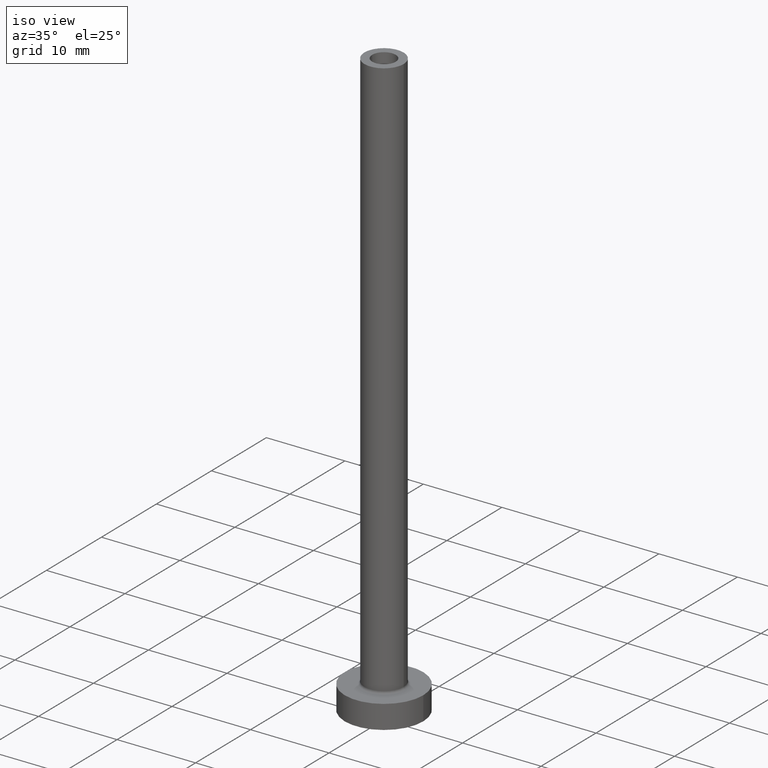
[diagram: clean part render]
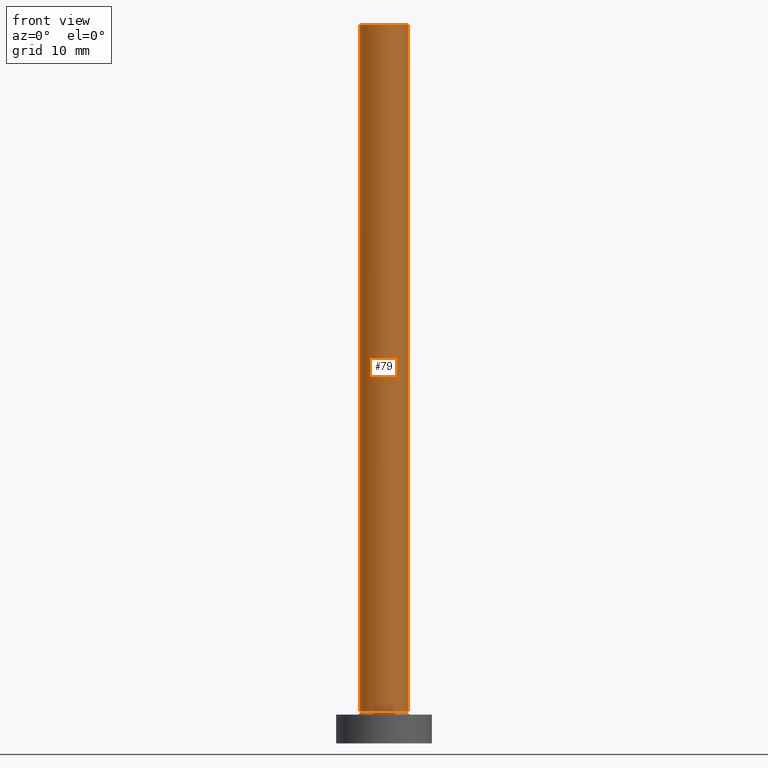
[diagram: tour spotlight — one face highlighted and labeled with its STEP entity id]
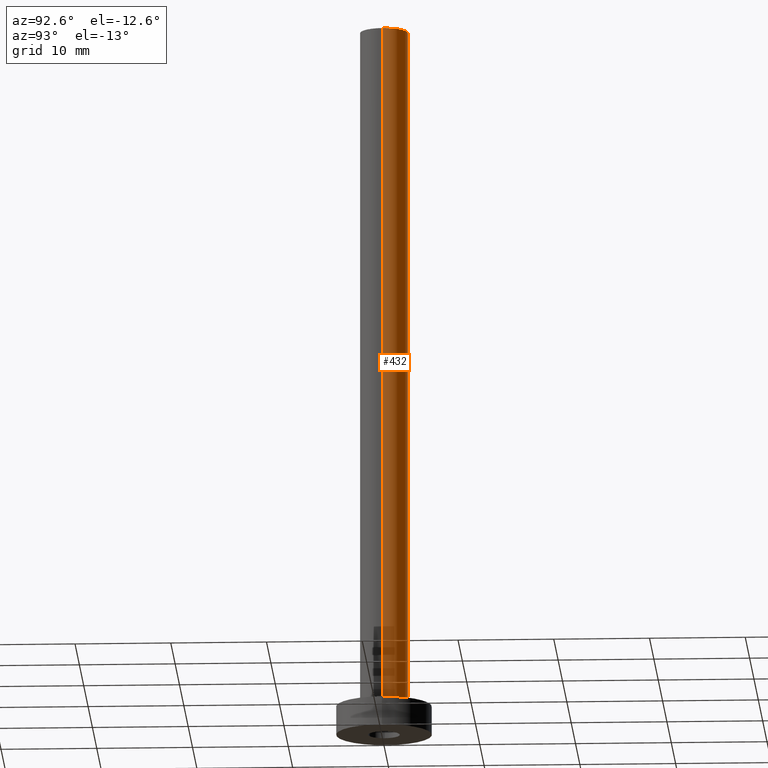
[diagram: tour spotlight — one face highlighted and labeled with its STEP entity id]
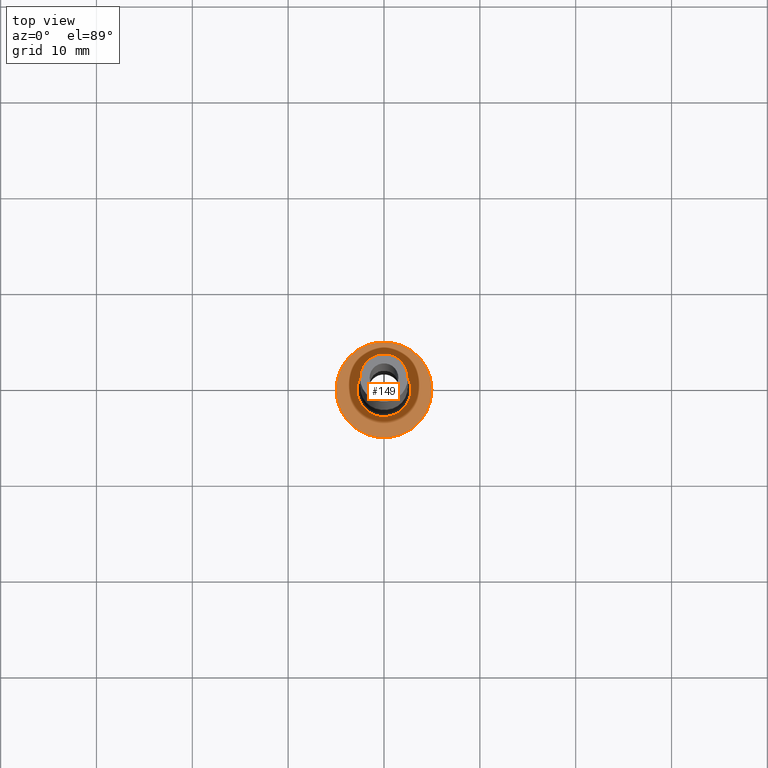
[diagram: tour spotlight — one face highlighted and labeled with its STEP entity id]
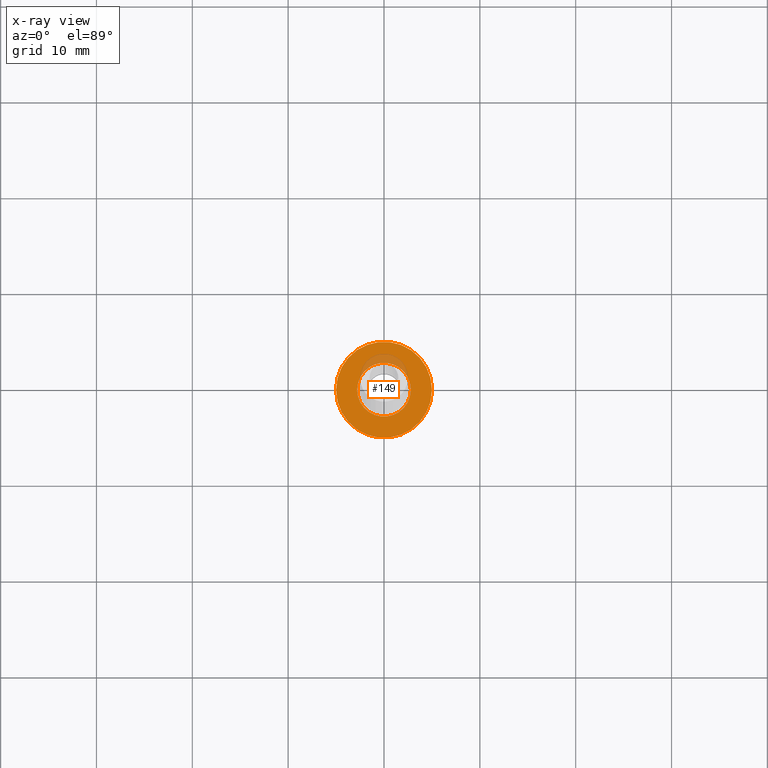
[diagram: x-ray of the same camera — body ghosted, this tour face saturated]
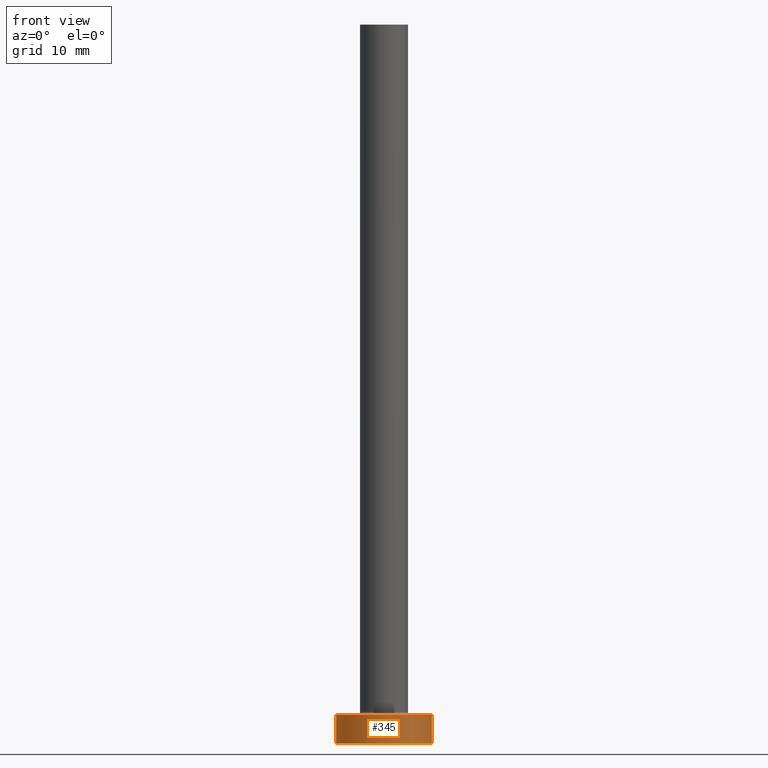
[diagram: tour spotlight — one face highlighted and labeled with its STEP entity id]
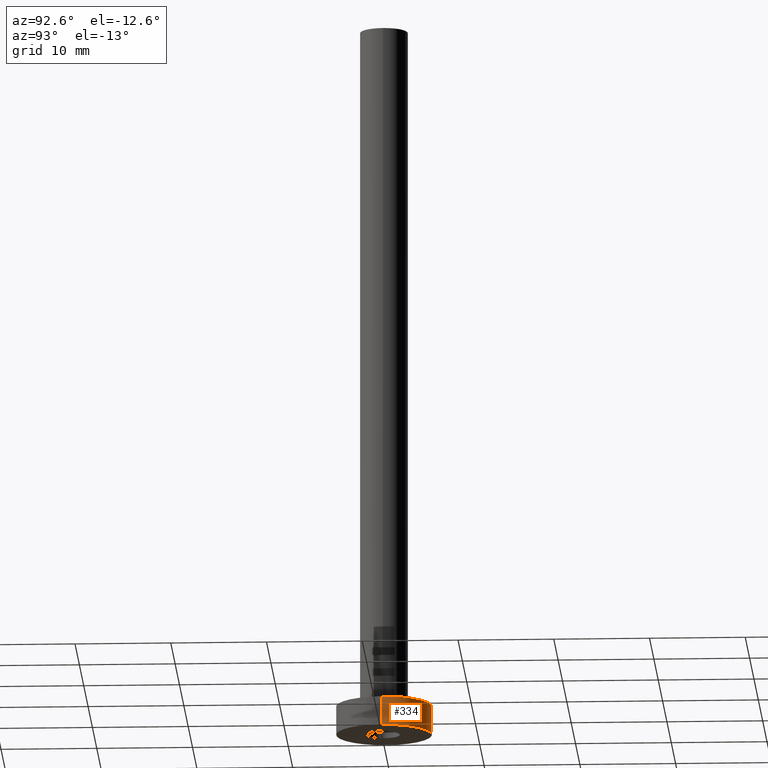
[diagram: tour spotlight — one face highlighted and labeled with its STEP entity id]
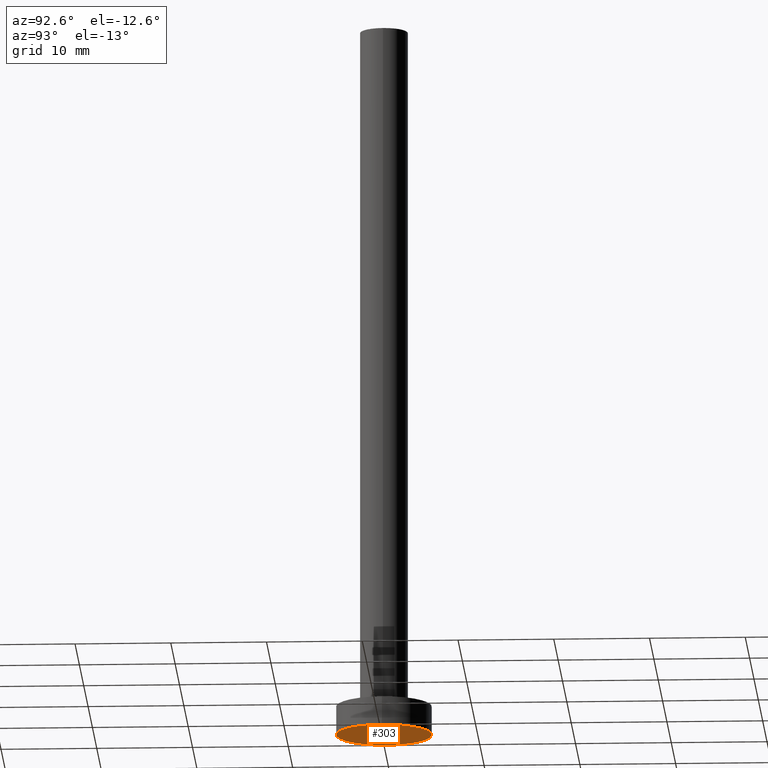
[diagram: tour spotlight — one face highlighted and labeled with its STEP entity id]
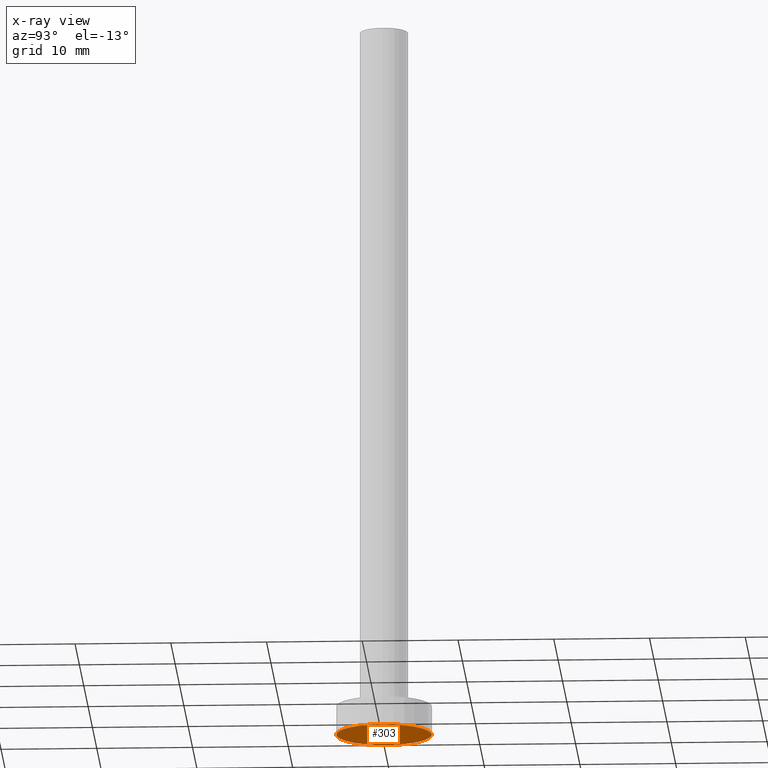
[diagram: x-ray of the same camera — body ghosted, this tour face saturated]
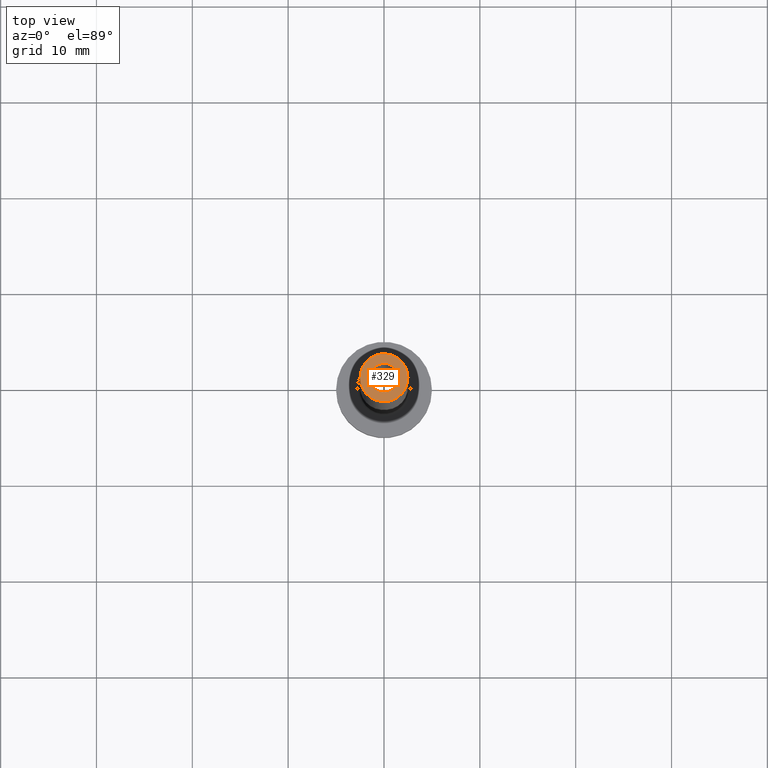
[diagram: tour spotlight — one face highlighted and labeled with its STEP entity id]
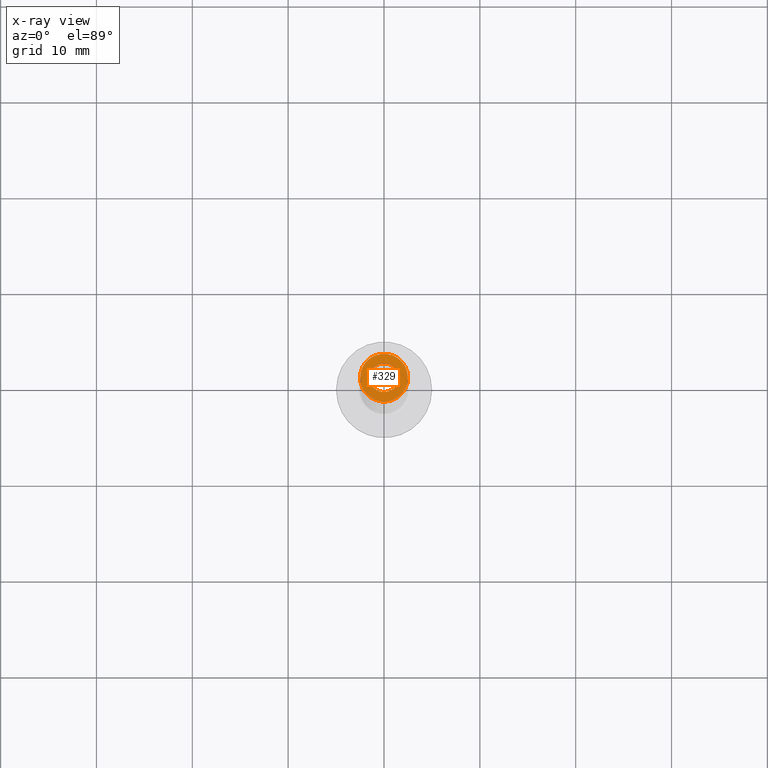
[diagram: x-ray of the same camera — body ghosted, this tour face saturated]
A machine part: a face-by-face anatomy tour. The part has 14 B-rep faces; the first image is the clean iso view, then the 7 largest visible faces are spotlighted one at a time (largest first), each with its STEP entity span.

Face 1 — front view, entity #79. In plain terms, the highlighted cylindrical surface (edge-blend (fillet) strip) has radius 2.5 mm, axis along (-0, -0, -1).
Definition (entity closure, byte-faithful):
#6 = ORIENTED_EDGE ( 'NONE', *, *, #372, .F. ) ;
#13 = LINE ( 'NONE', #258, #15 ) ;
#15 = VECTOR ( 'NONE', #338, 1000.000000000000000 ) ;
#18 = CARTESIAN_POINT ( 'NONE',  ( 2.500000000000000000, 3.061616997868383141E-16, 75.00000000000001421 ) ) ;
#23 = FACE_OUTER_BOUND ( 'NONE', #47, .T. ) ;
#31 = AXIS2_PLACEMENT_3D ( 'NONE', #77, #216, #260 ) ;
#32 = CARTESIAN_POINT ( 'NONE',  ( -2.500000000000000000, 0.000000000000000000, 75.00000000000001421 ) ) ;
#40 = ORIENTED_EDGE ( 'NONE', *, *, #366, .T. ) ;
#41 = AXIS2_PLACEMENT_3D ( 'NONE', #393, #104, #248 ) ;
#47 = EDGE_LOOP ( 'NONE', ( #6, #328, #40, #304 ) ) ;
#77 = CARTESIAN_POINT ( 'NONE',  ( 0.000000000000000000, 0.000000000000000000, 75.00000000000001421 ) ) ;
#79 = ADVANCED_FACE ( 'NONE', ( #23 ), #126, .T. ) ;
#97 = DIRECTION ( 'NONE',  ( -0.000000000000000000, -0.000000000000000000, -1.000000000000000000 ) ) ;
#104 = DIRECTION ( 'NONE',  ( 0.000000000000000000, 0.000000000000000000, 1.000000000000000000 ) ) ;
#115 = CARTESIAN_POINT ( 'NONE',  ( 2.500000000000000000, 3.061616997868383141E-16, 75.00000000000001421 ) ) ;
#126 = CYLINDRICAL_SURFACE ( 'NONE', #245, 2.500000000000000000 ) ;
#185 = CIRCLE ( 'NONE', #41, 2.500000000000000000 ) ;
#190 = LINE ( 'NONE', #18, #272 ) ;
#201 = CARTESIAN_POINT ( 'NONE',  ( 0.000000000000000000, 0.000000000000000000, 75.00000000000001421 ) ) ;
#216 = DIRECTION ( 'NONE',  ( 0.000000000000000000, 0.000000000000000000, 1.000000000000000000 ) ) ;
#221 = VERTEX_POINT ( 'NONE', #424 ) ;
#244 = VERTEX_POINT ( 'NONE', #361 ) ;
#245 = AXIS2_PLACEMENT_3D ( 'NONE', #201, #97, #451 ) ;
#248 = DIRECTION ( 'NONE',  ( 1.000000000000000000, 0.000000000000000000, 0.000000000000000000 ) ) ;
#256 = VERTEX_POINT ( 'NONE', #32 ) ;
#258 = CARTESIAN_POINT ( 'NONE',  ( -2.500000000000000000, 0.000000000000000000, 75.00000000000001421 ) ) ;
#260 = DIRECTION ( 'NONE',  ( 1.000000000000000000, 0.000000000000000000, 0.000000000000000000 ) ) ;
#272 = VECTOR ( 'NONE', #305, 1000.000000000000000 ) ;
#304 = ORIENTED_EDGE ( 'NONE', *, *, #313, .T. ) ;
#305 = DIRECTION ( 'NONE',  ( -0.000000000000000000, -0.000000000000000000, -1.000000000000000000 ) ) ;
#313 = EDGE_CURVE ( 'NONE', #221, #244, #185, .T. ) ;
#328 = ORIENTED_EDGE ( 'NONE', *, *, #450, .F. ) ;
#338 = DIRECTION ( 'NONE',  ( -0.000000000000000000, -0.000000000000000000, -1.000000000000000000 ) ) ;
#361 = CARTESIAN_POINT ( 'NONE',  ( 2.500000000000000000, 3.061616997868383141E-16, 3.299999999999997158 ) ) ;
#366 = EDGE_CURVE ( 'NONE', #256, #221, #13, .T. ) ;
#372 = EDGE_CURVE ( 'NONE', #444, #244, #190, .T. ) ;
#378 = CIRCLE ( 'NONE', #31, 2.500000000000000000 ) ;
#393 = CARTESIAN_POINT ( 'NONE',  ( 0.000000000000000000, 0.000000000000000000, 3.299999999999997158 ) ) ;
#424 = CARTESIAN_POINT ( 'NONE',  ( -2.500000000000000000, 0.000000000000000000, 3.299999999999997158 ) ) ;
#444 = VERTEX_POINT ( 'NONE', #115 ) ;
#450 = EDGE_CURVE ( 'NONE', #256, #444, #378, .T. ) ;
#451 = DIRECTION ( 'NONE',  ( -1.000000000000000000, 0.000000000000000000, 0.000000000000000000 ) ) ;

Face 2 — auxiliary view, entity #432. In plain terms, the highlighted cylindrical surface (edge-blend (fillet) strip) has radius 2.5 mm, axis along (-0, -0, -1).
Definition (entity closure, byte-faithful):
#10 = CYLINDRICAL_SURFACE ( 'NONE', #397, 2.500000000000000000 ) ;
#13 = LINE ( 'NONE', #258, #15 ) ;
#15 = VECTOR ( 'NONE', #338, 1000.000000000000000 ) ;
#18 = CARTESIAN_POINT ( 'NONE',  ( 2.500000000000000000, 3.061616997868383141E-16, 75.00000000000001421 ) ) ;
#32 = CARTESIAN_POINT ( 'NONE',  ( -2.500000000000000000, 0.000000000000000000, 75.00000000000001421 ) ) ;
#39 = CARTESIAN_POINT ( 'NONE',  ( 0.000000000000000000, 0.000000000000000000, 75.00000000000001421 ) ) ;
#102 = DIRECTION ( 'NONE',  ( 0.000000000000000000, 0.000000000000000000, 1.000000000000000000 ) ) ;
#112 = FACE_OUTER_BOUND ( 'NONE', #374, .T. ) ;
#115 = CARTESIAN_POINT ( 'NONE',  ( 2.500000000000000000, 3.061616997868383141E-16, 75.00000000000001421 ) ) ;
#190 = LINE ( 'NONE', #18, #272 ) ;
#194 = ORIENTED_EDGE ( 'NONE', *, *, #209, .T. ) ;
#209 = EDGE_CURVE ( 'NONE', #244, #221, #354, .T. ) ;
#219 = AXIS2_PLACEMENT_3D ( 'NONE', #356, #458, #426 ) ;
#221 = VERTEX_POINT ( 'NONE', #424 ) ;
#244 = VERTEX_POINT ( 'NONE', #361 ) ;
#247 = EDGE_CURVE ( 'NONE', #444, #256, #265, .T. ) ;
#252 = CARTESIAN_POINT ( 'NONE',  ( 0.000000000000000000, 0.000000000000000000, 75.00000000000001421 ) ) ;
#256 = VERTEX_POINT ( 'NONE', #32 ) ;
#258 = CARTESIAN_POINT ( 'NONE',  ( -2.500000000000000000, 0.000000000000000000, 75.00000000000001421 ) ) ;
#265 = CIRCLE ( 'NONE', #309, 2.500000000000000000 ) ;
#272 = VECTOR ( 'NONE', #305, 1000.000000000000000 ) ;
#305 = DIRECTION ( 'NONE',  ( -0.000000000000000000, -0.000000000000000000, -1.000000000000000000 ) ) ;
#309 = AXIS2_PLACEMENT_3D ( 'NONE', #39, #102, #363 ) ;
#338 = DIRECTION ( 'NONE',  ( -0.000000000000000000, -0.000000000000000000, -1.000000000000000000 ) ) ;
#354 = CIRCLE ( 'NONE', #219, 2.500000000000000000 ) ;
#356 = CARTESIAN_POINT ( 'NONE',  ( 0.000000000000000000, 0.000000000000000000, 3.299999999999997158 ) ) ;
#361 = CARTESIAN_POINT ( 'NONE',  ( 2.500000000000000000, 3.061616997868383141E-16, 3.299999999999997158 ) ) ;
#363 = DIRECTION ( 'NONE',  ( 1.000000000000000000, 0.000000000000000000, 0.000000000000000000 ) ) ;
#366 = EDGE_CURVE ( 'NONE', #256, #221, #13, .T. ) ;
#372 = EDGE_CURVE ( 'NONE', #444, #244, #190, .T. ) ;
#374 = EDGE_LOOP ( 'NONE', ( #379, #409, #194, #425 ) ) ;
#379 = ORIENTED_EDGE ( 'NONE', *, *, #247, .F. ) ;
#397 = AXIS2_PLACEMENT_3D ( 'NONE', #252, #410, #406 ) ;
#406 = DIRECTION ( 'NONE',  ( -1.000000000000000000, 0.000000000000000000, 0.000000000000000000 ) ) ;
#409 = ORIENTED_EDGE ( 'NONE', *, *, #372, .T. ) ;
#410 = DIRECTION ( 'NONE',  ( -0.000000000000000000, -0.000000000000000000, -1.000000000000000000 ) ) ;
#424 = CARTESIAN_POINT ( 'NONE',  ( -2.500000000000000000, 0.000000000000000000, 3.299999999999997158 ) ) ;
#425 = ORIENTED_EDGE ( 'NONE', *, *, #366, .F. ) ;
#426 = DIRECTION ( 'NONE',  ( 1.000000000000000000, 0.000000000000000000, 0.000000000000000000 ) ) ;
#432 = ADVANCED_FACE ( 'NONE', ( #112 ), #10, .T. ) ;
#444 = VERTEX_POINT ( 'NONE', #115 ) ;
#458 = DIRECTION ( 'NONE',  ( 0.000000000000000000, 0.000000000000000000, 1.000000000000000000 ) ) ;

Face 3 — top view, entity #149. An x-ray twin of the same camera follows (body ghosted, this face saturated) — the face is partly hidden behind the body. In plain terms, the highlighted planar face has unit normal (0, 0, 1).
Definition (entity closure, byte-faithful):
#14 = VERTEX_POINT ( 'NONE', #30 ) ;
#19 = EDGE_CURVE ( 'NONE', #353, #14, #395, .T. ) ;
#30 = CARTESIAN_POINT ( 'NONE',  ( -5.000000000000000000, 0.000000000000000000, 3.000000000000000000 ) ) ;
#46 = DIRECTION ( 'NONE',  ( -0.000000000000000000, -0.000000000000000000, -1.000000000000000000 ) ) ;
#49 = CIRCLE ( 'NONE', #227, 2.799999999999999822 ) ;
#52 = VERTEX_POINT ( 'NONE', #56 ) ;
#54 = CARTESIAN_POINT ( 'NONE',  ( 0.000000000000000000, 0.000000000000000000, 3.000000000000000000 ) ) ;
#56 = CARTESIAN_POINT ( 'NONE',  ( -2.799999999999999822, 3.429011037612589276E-16, 2.999999999999998668 ) ) ;
#60 = CIRCLE ( 'NONE', #148, 5.000000000000000000 ) ;
#65 = EDGE_CURVE ( 'NONE', #14, #353, #60, .T. ) ;
#91 = CIRCLE ( 'NONE', #152, 2.799999999999999822 ) ;
#92 = DIRECTION ( 'NONE',  ( 0.000000000000000000, 0.000000000000000000, 1.000000000000000000 ) ) ;
#95 = CARTESIAN_POINT ( 'NONE',  ( 0.000000000000000000, 0.000000000000000000, 3.000000000000000000 ) ) ;
#109 = CARTESIAN_POINT ( 'NONE',  ( 5.000000000000000000, 6.123233995736766282E-16, 3.000000000000000000 ) ) ;
#123 = FACE_OUTER_BOUND ( 'NONE', #323, .T. ) ;
#141 = ORIENTED_EDGE ( 'NONE', *, *, #358, .T. ) ;
#148 = AXIS2_PLACEMENT_3D ( 'NONE', #165, #171, #318 ) ;
#149 = ADVANCED_FACE ( 'NONE', ( #276, #123 ), #454, .T. ) ;
#152 = AXIS2_PLACEMENT_3D ( 'NONE', #373, #46, #367 ) ;
#165 = CARTESIAN_POINT ( 'NONE',  ( 0.000000000000000000, 0.000000000000000000, 3.000000000000000000 ) ) ;
#168 = EDGE_CURVE ( 'NONE', #52, #264, #49, .T. ) ;
#171 = DIRECTION ( 'NONE',  ( 0.000000000000000000, 0.000000000000000000, 1.000000000000000000 ) ) ;
#197 = AXIS2_PLACEMENT_3D ( 'NONE', #95, #274, #417 ) ;
#206 = CARTESIAN_POINT ( 'NONE',  ( 0.000000000000000000, 0.000000000000000000, 3.000000000000000000 ) ) ;
#218 = ORIENTED_EDGE ( 'NONE', *, *, #65, .T. ) ;
#227 = AXIS2_PLACEMENT_3D ( 'NONE', #206, #308, #446 ) ;
#264 = VERTEX_POINT ( 'NONE', #321 ) ;
#274 = DIRECTION ( 'NONE',  ( 0.000000000000000000, 0.000000000000000000, 1.000000000000000000 ) ) ;
#276 = FACE_BOUND ( 'NONE', #281, .T. ) ;
#281 = EDGE_LOOP ( 'NONE', ( #141, #407 ) ) ;
#308 = DIRECTION ( 'NONE',  ( -0.000000000000000000, -0.000000000000000000, -1.000000000000000000 ) ) ;
#318 = DIRECTION ( 'NONE',  ( 1.000000000000000000, 0.000000000000000000, 0.000000000000000000 ) ) ;
#321 = CARTESIAN_POINT ( 'NONE',  ( 2.799999999999999822, 0.000000000000000000, 2.999999999999998668 ) ) ;
#323 = EDGE_LOOP ( 'NONE', ( #218, #362 ) ) ;
#353 = VERTEX_POINT ( 'NONE', #109 ) ;
#358 = EDGE_CURVE ( 'NONE', #264, #52, #91, .T. ) ;
#362 = ORIENTED_EDGE ( 'NONE', *, *, #19, .T. ) ;
#367 = DIRECTION ( 'NONE',  ( 1.000000000000000000, 0.000000000000000000, 0.000000000000000000 ) ) ;
#373 = CARTESIAN_POINT ( 'NONE',  ( 0.000000000000000000, 0.000000000000000000, 3.000000000000000000 ) ) ;
#385 = DIRECTION ( 'NONE',  ( 1.000000000000000000, 0.000000000000000000, -0.000000000000000000 ) ) ;
#395 = CIRCLE ( 'NONE', #197, 5.000000000000000000 ) ;
#407 = ORIENTED_EDGE ( 'NONE', *, *, #168, .T. ) ;
#417 = DIRECTION ( 'NONE',  ( 1.000000000000000000, 0.000000000000000000, 0.000000000000000000 ) ) ;
#446 = DIRECTION ( 'NONE',  ( 1.000000000000000000, 0.000000000000000000, 0.000000000000000000 ) ) ;
#454 = PLANE ( 'NONE',  #455 ) ;
#455 = AXIS2_PLACEMENT_3D ( 'NONE', #54, #92, #385 ) ;

Face 4 — front view, entity #345. In plain terms, the highlighted cylindrical surface (partial cylindrical patch) has radius 5 mm, axis along (-0, -0, -1).
Definition (entity closure, byte-faithful):
#14 = VERTEX_POINT ( 'NONE', #30 ) ;
#16 = CARTESIAN_POINT ( 'NONE',  ( 5.000000000000000000, 6.123233995736766282E-16, 3.000000000000000000 ) ) ;
#30 = CARTESIAN_POINT ( 'NONE',  ( -5.000000000000000000, 0.000000000000000000, 3.000000000000000000 ) ) ;
#50 = DIRECTION ( 'NONE',  ( -1.000000000000000000, 0.000000000000000000, 0.000000000000000000 ) ) ;
#60 = CIRCLE ( 'NONE', #148, 5.000000000000000000 ) ;
#63 = VECTOR ( 'NONE', #324, 1000.000000000000000 ) ;
#65 = EDGE_CURVE ( 'NONE', #14, #353, #60, .T. ) ;
#109 = CARTESIAN_POINT ( 'NONE',  ( 5.000000000000000000, 6.123233995736766282E-16, 3.000000000000000000 ) ) ;
#144 = DIRECTION ( 'NONE',  ( -0.000000000000000000, -0.000000000000000000, -1.000000000000000000 ) ) ;
#147 = ORIENTED_EDGE ( 'NONE', *, *, #65, .F. ) ;
#148 = AXIS2_PLACEMENT_3D ( 'NONE', #165, #171, #318 ) ;
#165 = CARTESIAN_POINT ( 'NONE',  ( 0.000000000000000000, 0.000000000000000000, 3.000000000000000000 ) ) ;
#171 = DIRECTION ( 'NONE',  ( 0.000000000000000000, 0.000000000000000000, 1.000000000000000000 ) ) ;
#172 = LINE ( 'NONE', #282, #63 ) ;
#195 = EDGE_CURVE ( 'NONE', #298, #404, #447, .T. ) ;
#213 = AXIS2_PLACEMENT_3D ( 'NONE', #434, #322, #250 ) ;
#217 = FACE_OUTER_BOUND ( 'NONE', #341, .T. ) ;
#223 = CYLINDRICAL_SURFACE ( 'NONE', #299, 5.000000000000000000 ) ;
#224 = ORIENTED_EDGE ( 'NONE', *, *, #283, .T. ) ;
#250 = DIRECTION ( 'NONE',  ( 1.000000000000000000, 0.000000000000000000, 0.000000000000000000 ) ) ;
#282 = CARTESIAN_POINT ( 'NONE',  ( -5.000000000000000000, 0.000000000000000000, 3.000000000000000000 ) ) ;
#283 = EDGE_CURVE ( 'NONE', #14, #298, #172, .T. ) ;
#295 = LINE ( 'NONE', #16, #369 ) ;
#297 = CARTESIAN_POINT ( 'NONE',  ( 5.000000000000000000, 6.123233995736766282E-16, 0.000000000000000000 ) ) ;
#298 = VERTEX_POINT ( 'NONE', #460 ) ;
#299 = AXIS2_PLACEMENT_3D ( 'NONE', #439, #375, #50 ) ;
#318 = DIRECTION ( 'NONE',  ( 1.000000000000000000, 0.000000000000000000, 0.000000000000000000 ) ) ;
#322 = DIRECTION ( 'NONE',  ( 0.000000000000000000, 0.000000000000000000, 1.000000000000000000 ) ) ;
#324 = DIRECTION ( 'NONE',  ( -0.000000000000000000, -0.000000000000000000, -1.000000000000000000 ) ) ;
#333 = ORIENTED_EDGE ( 'NONE', *, *, #195, .T. ) ;
#341 = EDGE_LOOP ( 'NONE', ( #364, #147, #224, #333 ) ) ;
#345 = ADVANCED_FACE ( 'NONE', ( #217 ), #223, .T. ) ;
#353 = VERTEX_POINT ( 'NONE', #109 ) ;
#364 = ORIENTED_EDGE ( 'NONE', *, *, #413, .F. ) ;
#369 = VECTOR ( 'NONE', #144, 1000.000000000000000 ) ;
#375 = DIRECTION ( 'NONE',  ( -0.000000000000000000, -0.000000000000000000, -1.000000000000000000 ) ) ;
#404 = VERTEX_POINT ( 'NONE', #297 ) ;
#413 = EDGE_CURVE ( 'NONE', #353, #404, #295, .T. ) ;
#434 = CARTESIAN_POINT ( 'NONE',  ( 0.000000000000000000, 0.000000000000000000, 0.000000000000000000 ) ) ;
#439 = CARTESIAN_POINT ( 'NONE',  ( 0.000000000000000000, 0.000000000000000000, 3.000000000000000000 ) ) ;
#447 = CIRCLE ( 'NONE', #213, 5.000000000000000000 ) ;
#460 = CARTESIAN_POINT ( 'NONE',  ( -5.000000000000000000, 0.000000000000000000, 0.000000000000000000 ) ) ;

Face 5 — auxiliary view, entity #334. In plain terms, the highlighted cylindrical surface (partial cylindrical patch) has radius 5 mm, axis along (-0, -0, -1).
Definition (entity closure, byte-faithful):
#14 = VERTEX_POINT ( 'NONE', #30 ) ;
#16 = CARTESIAN_POINT ( 'NONE',  ( 5.000000000000000000, 6.123233995736766282E-16, 3.000000000000000000 ) ) ;
#19 = EDGE_CURVE ( 'NONE', #353, #14, #395, .T. ) ;
#30 = CARTESIAN_POINT ( 'NONE',  ( -5.000000000000000000, 0.000000000000000000, 3.000000000000000000 ) ) ;
#34 = DIRECTION ( 'NONE',  ( 1.000000000000000000, 0.000000000000000000, 0.000000000000000000 ) ) ;
#63 = VECTOR ( 'NONE', #324, 1000.000000000000000 ) ;
#80 = DIRECTION ( 'NONE',  ( -0.000000000000000000, -0.000000000000000000, -1.000000000000000000 ) ) ;
#95 = CARTESIAN_POINT ( 'NONE',  ( 0.000000000000000000, 0.000000000000000000, 3.000000000000000000 ) ) ;
#98 = CARTESIAN_POINT ( 'NONE',  ( 0.000000000000000000, 0.000000000000000000, 0.000000000000000000 ) ) ;
#109 = CARTESIAN_POINT ( 'NONE',  ( 5.000000000000000000, 6.123233995736766282E-16, 3.000000000000000000 ) ) ;
#114 = ORIENTED_EDGE ( 'NONE', *, *, #255, .T. ) ;
#144 = DIRECTION ( 'NONE',  ( -0.000000000000000000, -0.000000000000000000, -1.000000000000000000 ) ) ;
#172 = LINE ( 'NONE', #282, #63 ) ;
#183 = EDGE_LOOP ( 'NONE', ( #400, #261, #114, #293 ) ) ;
#197 = AXIS2_PLACEMENT_3D ( 'NONE', #95, #274, #417 ) ;
#212 = FACE_OUTER_BOUND ( 'NONE', #183, .T. ) ;
#220 = CYLINDRICAL_SURFACE ( 'NONE', #278, 5.000000000000000000 ) ;
#225 = CARTESIAN_POINT ( 'NONE',  ( 0.000000000000000000, 0.000000000000000000, 3.000000000000000000 ) ) ;
#234 = CIRCLE ( 'NONE', #327, 5.000000000000000000 ) ;
#255 = EDGE_CURVE ( 'NONE', #404, #298, #234, .T. ) ;
#261 = ORIENTED_EDGE ( 'NONE', *, *, #413, .T. ) ;
#274 = DIRECTION ( 'NONE',  ( 0.000000000000000000, 0.000000000000000000, 1.000000000000000000 ) ) ;
#278 = AXIS2_PLACEMENT_3D ( 'NONE', #225, #80, #370 ) ;
#282 = CARTESIAN_POINT ( 'NONE',  ( -5.000000000000000000, 0.000000000000000000, 3.000000000000000000 ) ) ;
#283 = EDGE_CURVE ( 'NONE', #14, #298, #172, .T. ) ;
#293 = ORIENTED_EDGE ( 'NONE', *, *, #283, .F. ) ;
#295 = LINE ( 'NONE', #16, #369 ) ;
#297 = CARTESIAN_POINT ( 'NONE',  ( 5.000000000000000000, 6.123233995736766282E-16, 0.000000000000000000 ) ) ;
#298 = VERTEX_POINT ( 'NONE', #460 ) ;
#324 = DIRECTION ( 'NONE',  ( -0.000000000000000000, -0.000000000000000000, -1.000000000000000000 ) ) ;
#327 = AXIS2_PLACEMENT_3D ( 'NONE', #98, #355, #34 ) ;
#334 = ADVANCED_FACE ( 'NONE', ( #212 ), #220, .T. ) ;
#353 = VERTEX_POINT ( 'NONE', #109 ) ;
#355 = DIRECTION ( 'NONE',  ( 0.000000000000000000, 0.000000000000000000, 1.000000000000000000 ) ) ;
#369 = VECTOR ( 'NONE', #144, 1000.000000000000000 ) ;
#370 = DIRECTION ( 'NONE',  ( -1.000000000000000000, 0.000000000000000000, 0.000000000000000000 ) ) ;
#395 = CIRCLE ( 'NONE', #197, 5.000000000000000000 ) ;
#400 = ORIENTED_EDGE ( 'NONE', *, *, #19, .F. ) ;
#404 = VERTEX_POINT ( 'NONE', #297 ) ;
#413 = EDGE_CURVE ( 'NONE', #353, #404, #295, .T. ) ;
#417 = DIRECTION ( 'NONE',  ( 1.000000000000000000, 0.000000000000000000, 0.000000000000000000 ) ) ;
#460 = CARTESIAN_POINT ( 'NONE',  ( -5.000000000000000000, 0.000000000000000000, 0.000000000000000000 ) ) ;

Face 6 — auxiliary view, entity #303. An x-ray twin of the same camera follows (body ghosted, this face saturated) — the face is partly hidden behind the body. In plain terms, the highlighted planar face has unit normal (0, 0, 1).
Definition (entity closure, byte-faithful):
#3 = DIRECTION ( 'NONE',  ( 1.000000000000000000, 0.000000000000000000, 0.000000000000000000 ) ) ;
#11 = ORIENTED_EDGE ( 'NONE', *, *, #195, .F. ) ;
#34 = DIRECTION ( 'NONE',  ( 1.000000000000000000, 0.000000000000000000, 0.000000000000000000 ) ) ;
#43 = ORIENTED_EDGE ( 'NONE', *, *, #233, .F. ) ;
#71 = CARTESIAN_POINT ( 'NONE',  ( 0.000000000000000000, 0.000000000000000000, 0.000000000000000000 ) ) ;
#73 = ORIENTED_EDGE ( 'NONE', *, *, #403, .F. ) ;
#93 = AXIS2_PLACEMENT_3D ( 'NONE', #71, #335, #150 ) ;
#98 = CARTESIAN_POINT ( 'NONE',  ( 0.000000000000000000, 0.000000000000000000, 0.000000000000000000 ) ) ;
#100 = PLANE ( 'NONE',  #390 ) ;
#111 = EDGE_LOOP ( 'NONE', ( #11, #286 ) ) ;
#134 = CARTESIAN_POINT ( 'NONE',  ( -1.650000000000000133, 0.000000000000000000, 0.000000000000000000 ) ) ;
#135 = FACE_OUTER_BOUND ( 'NONE', #111, .T. ) ;
#136 = EDGE_LOOP ( 'NONE', ( #73, #43 ) ) ;
#150 = DIRECTION ( 'NONE',  ( 1.000000000000000000, 0.000000000000000000, 0.000000000000000000 ) ) ;
#153 = CIRCLE ( 'NONE', #93, 1.650000000000000133 ) ;
#162 = AXIS2_PLACEMENT_3D ( 'NONE', #207, #177, #3 ) ;
#177 = DIRECTION ( 'NONE',  ( -0.000000000000000000, -0.000000000000000000, -1.000000000000000000 ) ) ;
#191 = VERTEX_POINT ( 'NONE', #134 ) ;
#195 = EDGE_CURVE ( 'NONE', #298, #404, #447, .T. ) ;
#205 = CIRCLE ( 'NONE', #162, 1.650000000000000133 ) ;
#207 = CARTESIAN_POINT ( 'NONE',  ( 0.000000000000000000, 0.000000000000000000, 0.000000000000000000 ) ) ;
#213 = AXIS2_PLACEMENT_3D ( 'NONE', #434, #322, #250 ) ;
#233 = EDGE_CURVE ( 'NONE', #440, #191, #205, .T. ) ;
#234 = CIRCLE ( 'NONE', #327, 5.000000000000000000 ) ;
#243 = DIRECTION ( 'NONE',  ( 1.000000000000000000, 0.000000000000000000, -0.000000000000000000 ) ) ;
#250 = DIRECTION ( 'NONE',  ( 1.000000000000000000, 0.000000000000000000, 0.000000000000000000 ) ) ;
#255 = EDGE_CURVE ( 'NONE', #404, #298, #234, .T. ) ;
#263 = CARTESIAN_POINT ( 'NONE',  ( 1.650000000000000133, 2.020667218593133001E-16, 0.000000000000000000 ) ) ;
#280 = FACE_BOUND ( 'NONE', #136, .T. ) ;
#285 = DIRECTION ( 'NONE',  ( 0.000000000000000000, 0.000000000000000000, 1.000000000000000000 ) ) ;
#286 = ORIENTED_EDGE ( 'NONE', *, *, #255, .F. ) ;
#297 = CARTESIAN_POINT ( 'NONE',  ( 5.000000000000000000, 6.123233995736766282E-16, 0.000000000000000000 ) ) ;
#298 = VERTEX_POINT ( 'NONE', #460 ) ;
#303 = ADVANCED_FACE ( 'NONE', ( #280, #135 ), #100, .F. ) ;
#322 = DIRECTION ( 'NONE',  ( 0.000000000000000000, 0.000000000000000000, 1.000000000000000000 ) ) ;
#327 = AXIS2_PLACEMENT_3D ( 'NONE', #98, #355, #34 ) ;
#335 = DIRECTION ( 'NONE',  ( -0.000000000000000000, -0.000000000000000000, -1.000000000000000000 ) ) ;
#355 = DIRECTION ( 'NONE',  ( 0.000000000000000000, 0.000000000000000000, 1.000000000000000000 ) ) ;
#390 = AXIS2_PLACEMENT_3D ( 'NONE', #428, #285, #243 ) ;
#403 = EDGE_CURVE ( 'NONE', #191, #440, #153, .T. ) ;
#404 = VERTEX_POINT ( 'NONE', #297 ) ;
#428 = CARTESIAN_POINT ( 'NONE',  ( 0.000000000000000000, 0.000000000000000000, 0.000000000000000000 ) ) ;
#434 = CARTESIAN_POINT ( 'NONE',  ( 0.000000000000000000, 0.000000000000000000, 0.000000000000000000 ) ) ;
#440 = VERTEX_POINT ( 'NONE', #263 ) ;
#447 = CIRCLE ( 'NONE', #213, 5.000000000000000000 ) ;
#460 = CARTESIAN_POINT ( 'NONE',  ( -5.000000000000000000, 0.000000000000000000, 0.000000000000000000 ) ) ;

Face 7 — top view, entity #329. An x-ray twin of the same camera follows (body ghosted, this face saturated) — the face is partly hidden behind the body. In plain terms, the highlighted planar face has unit normal (0, 0, 1).
Definition (entity closure, byte-faithful):
#1 = AXIS2_PLACEMENT_3D ( 'NONE', #138, #398, #359 ) ;
#8 = ORIENTED_EDGE ( 'NONE', *, *, #247, .T. ) ;
#31 = AXIS2_PLACEMENT_3D ( 'NONE', #77, #216, #260 ) ;
#32 = CARTESIAN_POINT ( 'NONE',  ( -2.500000000000000000, 0.000000000000000000, 75.00000000000001421 ) ) ;
#39 = CARTESIAN_POINT ( 'NONE',  ( 0.000000000000000000, 0.000000000000000000, 75.00000000000001421 ) ) ;
#64 = DIRECTION ( 'NONE',  ( 0.000000000000000000, 0.000000000000000000, 1.000000000000000000 ) ) ;
#66 = FACE_OUTER_BOUND ( 'NONE', #357, .T. ) ;
#69 = PLANE ( 'NONE',  #257 ) ;
#74 = CIRCLE ( 'NONE', #438, 1.500000000000000222 ) ;
#77 = CARTESIAN_POINT ( 'NONE',  ( 0.000000000000000000, 0.000000000000000000, 75.00000000000001421 ) ) ;
#102 = DIRECTION ( 'NONE',  ( 0.000000000000000000, 0.000000000000000000, 1.000000000000000000 ) ) ;
#115 = CARTESIAN_POINT ( 'NONE',  ( 2.500000000000000000, 3.061616997868383141E-16, 75.00000000000001421 ) ) ;
#131 = EDGE_CURVE ( 'NONE', #155, #461, #74, .T. ) ;
#138 = CARTESIAN_POINT ( 'NONE',  ( 0.000000000000000000, 0.000000000000000000, 75.00000000000001421 ) ) ;
#155 = VERTEX_POINT ( 'NONE', #199 ) ;
#180 = ORIENTED_EDGE ( 'NONE', *, *, #450, .T. ) ;
#199 = CARTESIAN_POINT ( 'NONE',  ( 1.500000000000000222, 1.836970198721029934E-16, 75.00000000000001421 ) ) ;
#216 = DIRECTION ( 'NONE',  ( 0.000000000000000000, 0.000000000000000000, 1.000000000000000000 ) ) ;
#247 = EDGE_CURVE ( 'NONE', #444, #256, #265, .T. ) ;
#256 = VERTEX_POINT ( 'NONE', #32 ) ;
#257 = AXIS2_PLACEMENT_3D ( 'NONE', #320, #64, #396 ) ;
#260 = DIRECTION ( 'NONE',  ( 1.000000000000000000, 0.000000000000000000, 0.000000000000000000 ) ) ;
#265 = CIRCLE ( 'NONE', #309, 2.500000000000000000 ) ;
#269 = EDGE_CURVE ( 'NONE', #461, #155, #279, .T. ) ;
#271 = CARTESIAN_POINT ( 'NONE',  ( 0.000000000000000000, 0.000000000000000000, 75.00000000000001421 ) ) ;
#279 = CIRCLE ( 'NONE', #1, 1.500000000000000222 ) ;
#289 = FACE_BOUND ( 'NONE', #371, .T. ) ;
#309 = AXIS2_PLACEMENT_3D ( 'NONE', #39, #102, #363 ) ;
#320 = CARTESIAN_POINT ( 'NONE',  ( 0.000000000000000000, 0.000000000000000000, 75.00000000000001421 ) ) ;
#329 = ADVANCED_FACE ( 'NONE', ( #289, #66 ), #69, .T. ) ;
#339 = ORIENTED_EDGE ( 'NONE', *, *, #269, .F. ) ;
#357 = EDGE_LOOP ( 'NONE', ( #180, #8 ) ) ;
#359 = DIRECTION ( 'NONE',  ( 1.000000000000000000, 0.000000000000000000, 0.000000000000000000 ) ) ;
#363 = DIRECTION ( 'NONE',  ( 1.000000000000000000, 0.000000000000000000, 0.000000000000000000 ) ) ;
#371 = EDGE_LOOP ( 'NONE', ( #339, #436 ) ) ;
#378 = CIRCLE ( 'NONE', #31, 2.500000000000000000 ) ;
#383 = DIRECTION ( 'NONE',  ( 0.000000000000000000, 0.000000000000000000, 1.000000000000000000 ) ) ;
#396 = DIRECTION ( 'NONE',  ( 1.000000000000000000, 0.000000000000000000, -0.000000000000000000 ) ) ;
#398 = DIRECTION ( 'NONE',  ( 0.000000000000000000, 0.000000000000000000, 1.000000000000000000 ) ) ;
#419 = DIRECTION ( 'NONE',  ( 1.000000000000000000, 0.000000000000000000, 0.000000000000000000 ) ) ;
#435 = CARTESIAN_POINT ( 'NONE',  ( -1.500000000000000222, 0.000000000000000000, 75.00000000000001421 ) ) ;
#436 = ORIENTED_EDGE ( 'NONE', *, *, #131, .F. ) ;
#438 = AXIS2_PLACEMENT_3D ( 'NONE', #271, #383, #419 ) ;
#444 = VERTEX_POINT ( 'NONE', #115 ) ;
#450 = EDGE_CURVE ( 'NONE', #256, #444, #378, .T. ) ;
#461 = VERTEX_POINT ( 'NONE', #435 ) ;